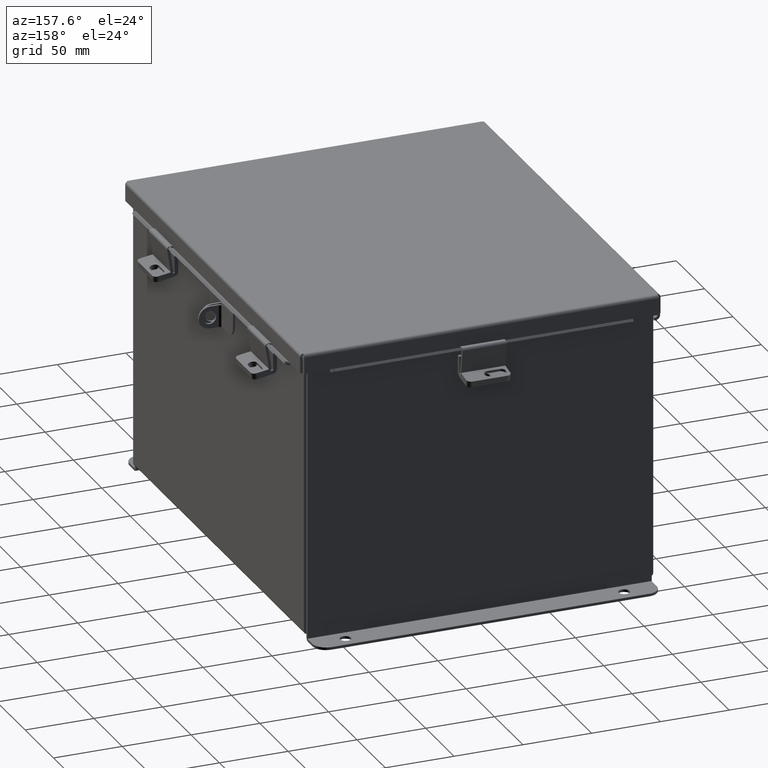
[diagram: clean part render]
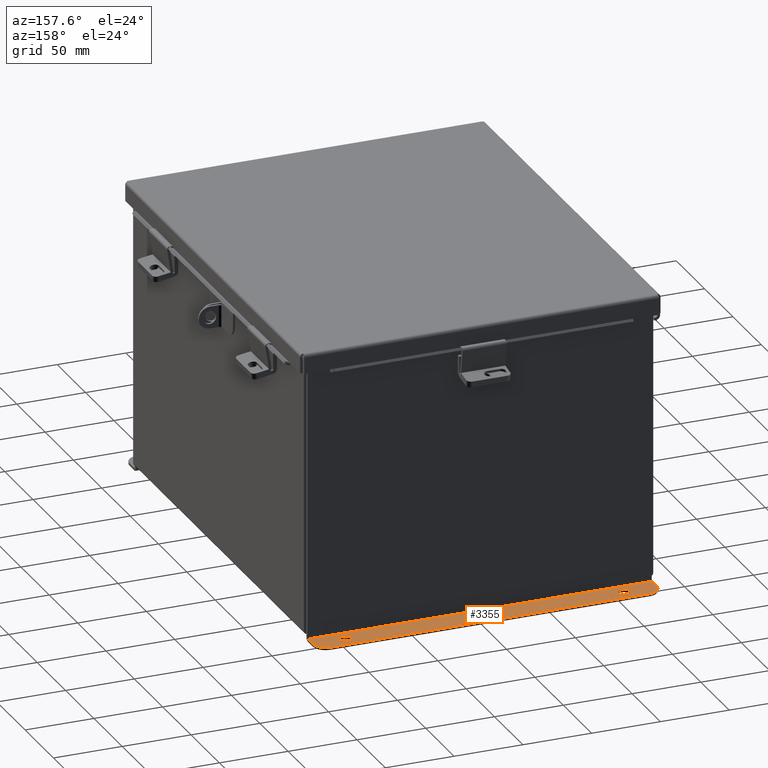
[diagram: same view with one face highlighted and labeled with its STEP entity id]
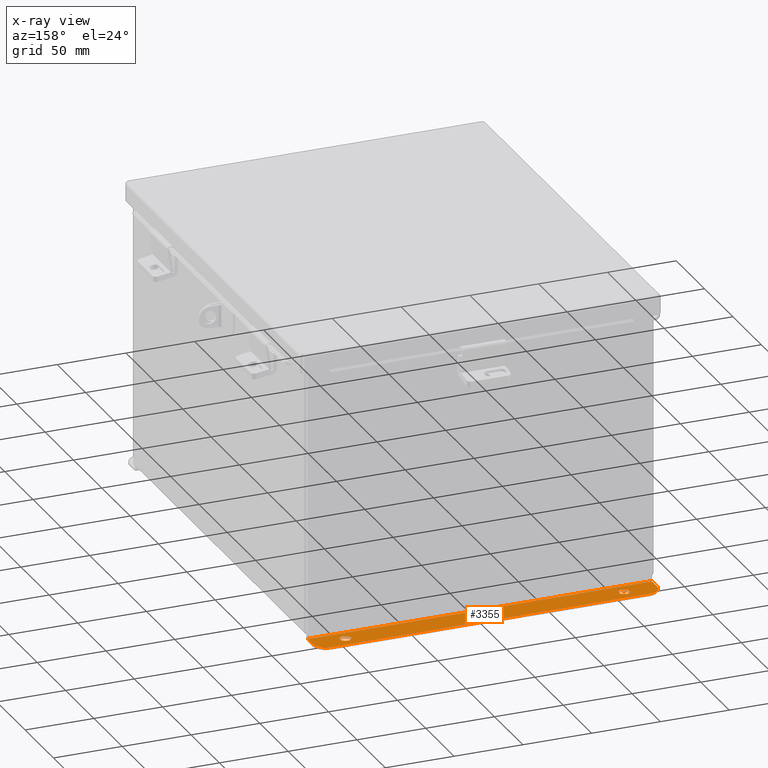
[diagram: x-ray of the same camera — body ghosted, the highlighted face saturated]
A machine part, auxiliary view. The second image highlights one B-rep face of the part: STEP entity #3355.
The next image is the same camera in x-ray: the body ghosted, the highlighted face saturated — about 0% of this face is hidden behind the body in this view.
In plain terms, the highlighted planar face has unit normal (0, 0, 1).
Its self-contained STEP definition (entity closure, byte-faithful):
#192 = CARTESIAN_POINT ( 'NONE',  ( -4.925300000000000000, 0.3628000000000008400, -4.112300000000002100 ) ) ;
#527 = VERTEX_POINT ( 'NONE', #17578 ) ;
#700 = EDGE_CURVE ( 'NONE', #2855, #8889, #6593, .T. ) ;
#775 = DIRECTION ( 'NONE',  ( -1.000000000000000000, -5.546561617899952800E-017, 2.053722313309188000E-031 ) ) ;
#858 = AXIS2_PLACEMENT_3D ( 'NONE', #13112, #16633, #17114 ) ;
#1156 = AXIS2_PLACEMENT_3D ( 'NONE', #15842, #16535, #3417 ) ;
#1182 = DIRECTION ( 'NONE',  ( 0.0000000000000000000, 3.702694488566362300E-015, 1.000000000000000000 ) ) ;
#1333 = CARTESIAN_POINT ( 'NONE',  ( 0.0000000000000000000, -1.420560956705417000E-014, -4.112300000000001200 ) ) ;
#1385 = EDGE_CURVE ( 'NONE', #8889, #2855, #14023, .T. ) ;
#1450 = CARTESIAN_POINT ( 'NONE',  ( 4.925300000000000000, 0.3627999999999997300, -4.112300000000002100 ) ) ;
#1514 = DIRECTION ( 'NONE',  ( 0.0000000000000000000, 3.702694488566362300E-015, 1.000000000000000000 ) ) ;
#2022 = VERTEX_POINT ( 'NONE', #11891 ) ;
#2065 = EDGE_LOOP ( 'NONE', ( #10427, #10116 ) ) ;
#2501 = CARTESIAN_POINT ( 'NONE',  ( -4.550300000000000000, 0.7378000000000000100, -4.112300000000003800 ) ) ;
#2509 = LINE ( 'NONE', #17086, #16612 ) ;
#2645 = ORIENTED_EDGE ( 'NONE', *, *, #9638, .T. ) ;
#2855 = VERTEX_POINT ( 'NONE', #3038 ) ;
#2860 = AXIS2_PLACEMENT_3D ( 'NONE', #1333, #1514, #6908 ) ;
#3038 = CARTESIAN_POINT ( 'NONE',  ( -3.987800000000000900, 0.2067999999999952100, -4.112300000000001200 ) ) ;
#3154 = EDGE_CURVE ( 'NONE', #8890, #2022, #2509, .T. ) ;
#3355 = ADVANCED_FACE ( 'NONE', ( #16824, #5921, #12773 ), #8213, .T. ) ;
#3417 = DIRECTION ( 'NONE',  ( 0.0000000000000000000, -1.000000000000000000, 3.502369222646487400E-015 ) ) ;
#3521 = AXIS2_PLACEMENT_3D ( 'NONE', #5977, #15497, #7346 ) ;
#4028 = VECTOR ( 'NONE', #775, 39.37007874015748100 ) ;
#4412 = ORIENTED_EDGE ( 'NONE', *, *, #10111, .F. ) ;
#4677 = VERTEX_POINT ( 'NONE', #16898 ) ;
#5071 = EDGE_LOOP ( 'NONE', ( #13391, #2645, #6490, #17408, #9307, #4412 ) ) ;
#5921 = FACE_BOUND ( 'NONE', #9120, .T. ) ;
#5959 = VECTOR ( 'NONE', #17357, 39.37007874015748100 ) ;
#5977 = CARTESIAN_POINT ( 'NONE',  ( 3.987800000000000000, 0.3627999999999954000, -4.112300000000002100 ) ) ;
#6329 = EDGE_CURVE ( 'NONE', #527, #6789, #12081, .T. ) ;
#6490 = ORIENTED_EDGE ( 'NONE', *, *, #3154, .F. ) ;
#6497 = VERTEX_POINT ( 'NONE', #1450 ) ;
#6593 = CIRCLE ( 'NONE', #11447, 0.1560000000000001700 ) ;
#6760 = CARTESIAN_POINT ( 'NONE',  ( 4.925300000000000000, 0.01300000000000010700, -4.112300000000001200 ) ) ;
#6789 = VERTEX_POINT ( 'NONE', #9572 ) ;
#6908 = DIRECTION ( 'NONE',  ( 0.0000000000000000000, -1.000000000000000000, 3.702694488566362300E-015 ) ) ;
#7346 = DIRECTION ( 'NONE',  ( 0.0000000000000000000, -1.000000000000000000, 3.502369222646487400E-015 ) ) ;
#7796 = CARTESIAN_POINT ( 'NONE',  ( -4.925300000000000000, 0.7378000000000000100, -4.112300000000003800 ) ) ;
#8027 = CARTESIAN_POINT ( 'NONE',  ( 4.550300000000000000, 0.3627999999999997300, -4.112300000000002100 ) ) ;
#8206 = DIRECTION ( 'NONE',  ( 1.000000000000000000, -0.0000000000000000000, -0.0000000000000000000 ) ) ;
#8213 = PLANE ( 'NONE',  #2860 ) ;
#8889 = VERTEX_POINT ( 'NONE', #10683 ) ;
#8890 = VERTEX_POINT ( 'NONE', #2501 ) ;
#9089 = VERTEX_POINT ( 'NONE', #192 ) ;
#9120 = EDGE_LOOP ( 'NONE', ( #15455, #9909 ) ) ;
#9153 = DIRECTION ( 'NONE',  ( -0.0000000000000000000, -1.000000000000000000, 3.702694488566362300E-015 ) ) ;
#9217 = EDGE_CURVE ( 'NONE', #6789, #527, #13278, .T. ) ;
#9307 = ORIENTED_EDGE ( 'NONE', *, *, #12794, .F. ) ;
#9387 = CARTESIAN_POINT ( 'NONE',  ( -4.550300000000000000, 0.3628000000000008400, -4.112300000000002100 ) ) ;
#9401 = DIRECTION ( 'NONE',  ( 0.0000000000000000000, -1.000000000000000000, 4.370956789862820400E-015 ) ) ;
#9572 = CARTESIAN_POINT ( 'NONE',  ( 3.987800000000000000, 0.2067999999999952100, -4.112300000000001200 ) ) ;
#9638 = EDGE_CURVE ( 'NONE', #6497, #2022, #14923, .T. ) ;
#9909 = ORIENTED_EDGE ( 'NONE', *, *, #9217, .T. ) ;
#10111 = EDGE_CURVE ( 'NONE', #12993, #4677, #14499, .T. ) ;
#10116 = ORIENTED_EDGE ( 'NONE', *, *, #700, .T. ) ;
#10193 = EDGE_CURVE ( 'NONE', #6497, #12993, #16429, .T. ) ;
#10305 = EDGE_CURVE ( 'NONE', #8890, #9089, #11943, .T. ) ;
#10427 = ORIENTED_EDGE ( 'NONE', *, *, #1385, .T. ) ;
#10683 = CARTESIAN_POINT ( 'NONE',  ( -3.987800000000000900, 0.5187999999999956000, -4.112300000000002100 ) ) ;
#10736 = DIRECTION ( 'NONE',  ( 0.0000000000000000000, -1.000000000000000000, 4.370956789862820400E-015 ) ) ;
#11134 = DIRECTION ( 'NONE',  ( -0.0000000000000000000, -3.702694488566362300E-015, -1.000000000000000000 ) ) ;
#11445 = CARTESIAN_POINT ( 'NONE',  ( -3.987800000000000900, 0.3627999999999954000, -4.112300000000002100 ) ) ;
#11447 = AXIS2_PLACEMENT_3D ( 'NONE', #11445, #11134, #14799 ) ;
#11891 = CARTESIAN_POINT ( 'NONE',  ( 4.550300000000000000, 0.7378000000000000100, -4.112300000000003800 ) ) ;
#11943 = CIRCLE ( 'NONE', #15311, 0.3750000000000000600 ) ;
#12081 = CIRCLE ( 'NONE', #858, 0.1560000000000001700 ) ;
#12773 = FACE_OUTER_BOUND ( 'NONE', #5071, .T. ) ;
#12794 = EDGE_CURVE ( 'NONE', #4677, #9089, #16416, .T. ) ;
#12819 = VECTOR ( 'NONE', #9153, 39.37007874015748100 ) ;
#12993 = VERTEX_POINT ( 'NONE', #6760 ) ;
#13112 = CARTESIAN_POINT ( 'NONE',  ( 3.987800000000000000, 0.3627999999999954000, -4.112300000000002100 ) ) ;
#13278 = CIRCLE ( 'NONE', #3521, 0.1560000000000001700 ) ;
#13391 = ORIENTED_EDGE ( 'NONE', *, *, #10193, .F. ) ;
#14023 = CIRCLE ( 'NONE', #1156, 0.1560000000000001700 ) ;
#14153 = AXIS2_PLACEMENT_3D ( 'NONE', #8027, #17581, #9401 ) ;
#14383 = CARTESIAN_POINT ( 'NONE',  ( 4.925300000000000000, 0.01300000000000010700, -4.112300000000001200 ) ) ;
#14499 = LINE ( 'NONE', #14383, #4028 ) ;
#14799 = DIRECTION ( 'NONE',  ( 0.0000000000000000000, -1.000000000000000000, 3.502369222646487400E-015 ) ) ;
#14923 = CIRCLE ( 'NONE', #14153, 0.3750000000000000600 ) ;
#15311 = AXIS2_PLACEMENT_3D ( 'NONE', #9387, #1182, #10736 ) ;
#15455 = ORIENTED_EDGE ( 'NONE', *, *, #6329, .T. ) ;
#15497 = DIRECTION ( 'NONE',  ( -0.0000000000000000000, -3.702694488566362300E-015, -1.000000000000000000 ) ) ;
#15842 = CARTESIAN_POINT ( 'NONE',  ( -3.987800000000000900, 0.3627999999999954000, -4.112300000000002100 ) ) ;
#16416 = LINE ( 'NONE', #7796, #5959 ) ;
#16429 = LINE ( 'NONE', #17353, #12819 ) ;
#16535 = DIRECTION ( 'NONE',  ( -0.0000000000000000000, -3.702694488566362300E-015, -1.000000000000000000 ) ) ;
#16612 = VECTOR ( 'NONE', #8206, 39.37007874015748100 ) ;
#16633 = DIRECTION ( 'NONE',  ( -0.0000000000000000000, -3.702694488566362300E-015, -1.000000000000000000 ) ) ;
#16824 = FACE_BOUND ( 'NONE', #2065, .T. ) ;
#16898 = CARTESIAN_POINT ( 'NONE',  ( -4.925299999999999100, 0.01299999999999901400, -4.112300000000001200 ) ) ;
#17086 = CARTESIAN_POINT ( 'NONE',  ( 4.925300000000000000, 0.7378000000000000100, -4.112300000000003800 ) ) ;
#17114 = DIRECTION ( 'NONE',  ( 0.0000000000000000000, -1.000000000000000000, 3.502369222646487400E-015 ) ) ;
#17353 = CARTESIAN_POINT ( 'NONE',  ( 4.925300000000000000, 0.0000000000000000000, -4.112300000000001200 ) ) ;
#17357 = DIRECTION ( 'NONE',  ( -0.0000000000000000000, 1.000000000000000000, -3.702694488566362300E-015 ) ) ;
#17408 = ORIENTED_EDGE ( 'NONE', *, *, #10305, .T. ) ;
#17578 = CARTESIAN_POINT ( 'NONE',  ( 3.987800000000000000, 0.5187999999999956000, -4.112300000000002100 ) ) ;
#17581 = DIRECTION ( 'NONE',  ( 0.0000000000000000000, 3.702694488566362300E-015, 1.000000000000000000 ) ) ;